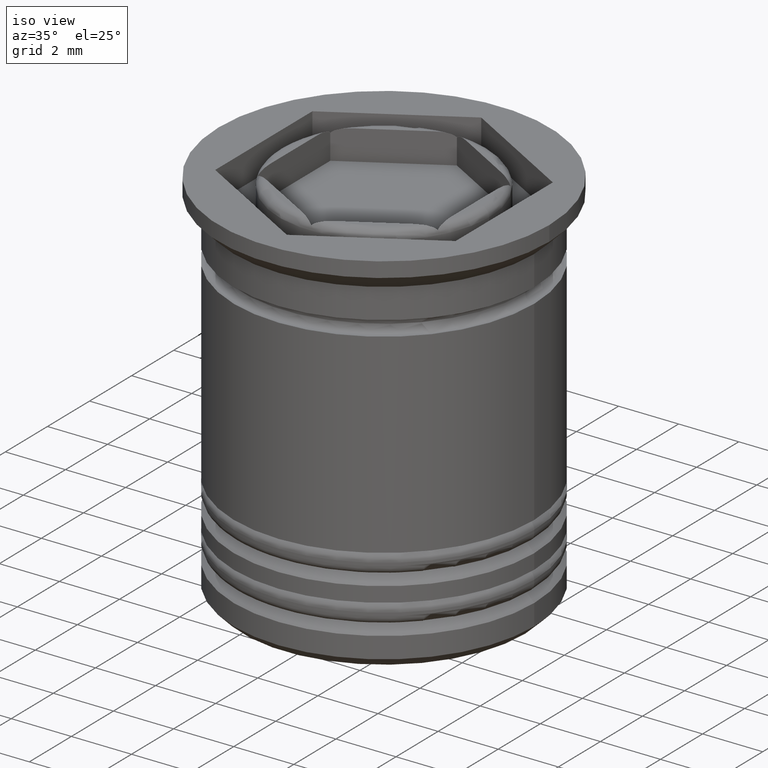
[diagram: clean part render]
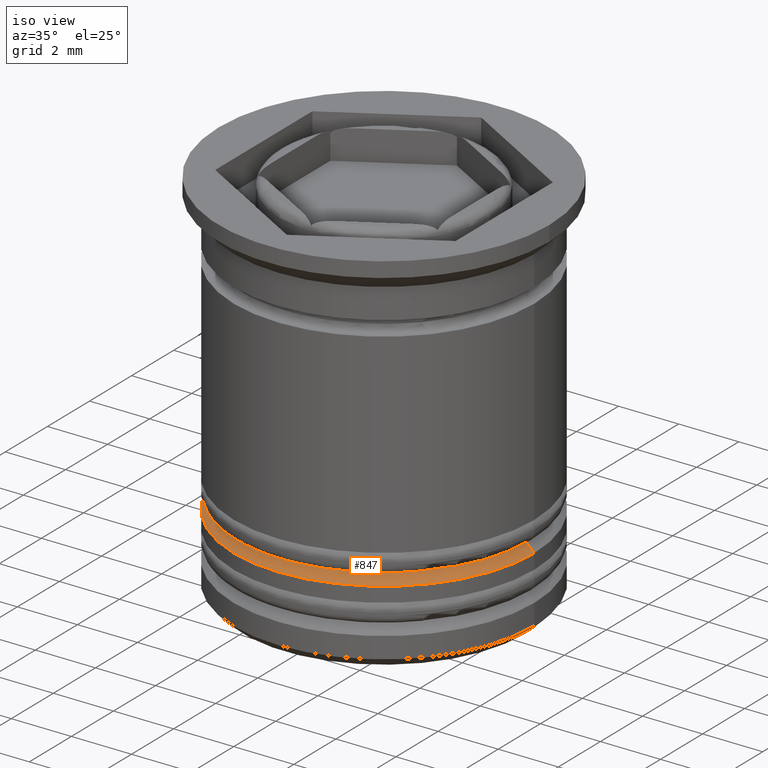
[diagram: same view with one face highlighted and labeled with its STEP entity id]
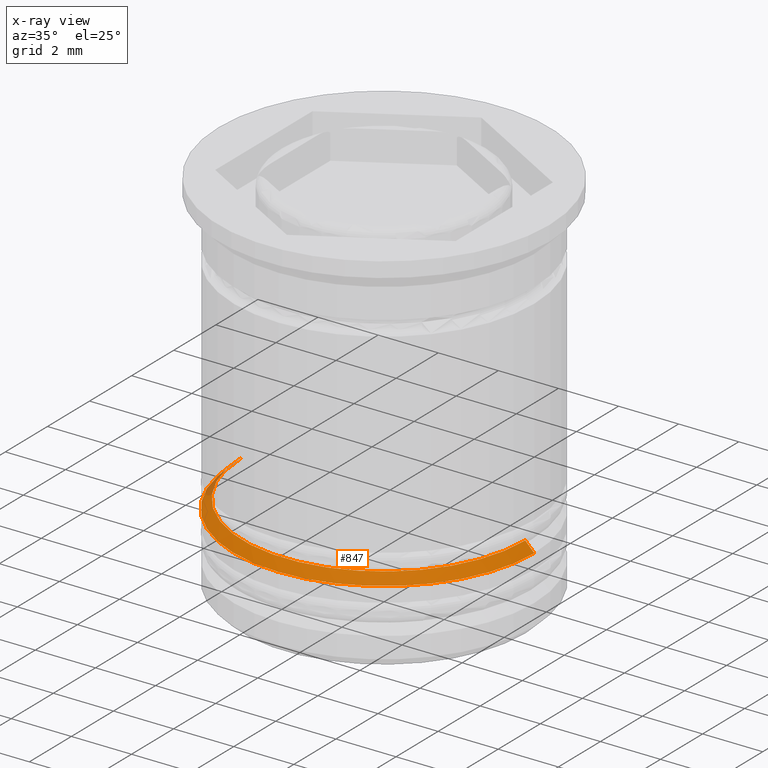
[diagram: x-ray of the same camera — body ghosted, the highlighted face saturated]
A machine part, iso view. The second image highlights one B-rep face of the part: STEP entity #847.
The next image is the same camera in x-ray: the body ghosted, the highlighted face saturated — about 2% of this face is hidden behind the body in this view.
In plain terms, the highlighted conical surface has half-angle 45 deg.
Its self-contained STEP definition (entity closure, byte-faithful):
#23 = EDGE_CURVE ( 'NONE', #1390, #913, #632, .T. ) ;
#35 = EDGE_CURVE ( 'NONE', #1653, #1390, #1521, .T. ) ;
#41 = VERTEX_POINT ( 'NONE', #1628 ) ;
#44 = DIRECTION ( 'NONE',  ( -0.000000000000000000, -0.000000000000000000, 1.000000000000000000 ) ) ;
#47 = CARTESIAN_POINT ( 'NONE',  ( -4.499999999999992006, 0.000000000000000000, -9.500000000000001776 ) ) ;
#69 = EDGE_CURVE ( 'NONE', #41, #1653, #311, .T. ) ;
#230 = AXIS2_PLACEMENT_3D ( 'NONE', #1108, #803, #1280 ) ;
#296 = DIRECTION ( 'NONE',  ( 0.000000000000000000, 0.000000000000000000, -1.000000000000000000 ) ) ;
#311 = CIRCLE ( 'NONE', #1735, 4.700000000000001066 ) ;
#364 = ORIENTED_EDGE ( 'NONE', *, *, #1223, .T. ) ;
#522 = CARTESIAN_POINT ( 'NONE',  ( 0.000000000000000000, 0.000000000000000000, -9.700000000000008171 ) ) ;
#632 = CIRCLE ( 'NONE', #1802, 5.000000000000000888 ) ;
#692 = DIRECTION ( 'NONE',  ( -0.7071067811865512365, 0.000000000000000000, -0.7071067811865439090 ) ) ;
#803 = DIRECTION ( 'NONE',  ( 0.000000000000000000, 0.000000000000000000, -1.000000000000000000 ) ) ;
#847 = ADVANCED_FACE ( 'NONE', ( #1789 ), #1190, .T. ) ;
#896 = VECTOR ( 'NONE', #1837, 1000.000000000000000 ) ;
#913 = VERTEX_POINT ( 'NONE', #1369 ) ;
#1012 = DIRECTION ( 'NONE',  ( -1.000000000000000000, 0.000000000000000000, 0.000000000000000000 ) ) ;
#1067 = EDGE_LOOP ( 'NONE', ( #1219, #1890, #364, #1217 ) ) ;
#1108 = CARTESIAN_POINT ( 'NONE',  ( 0.000000000000000000, 0.000000000000000000, -9.500000000000001776 ) ) ;
#1173 = CARTESIAN_POINT ( 'NONE',  ( 5.000000000000000888, 0.000000000000000000, -10.00000000000000533 ) ) ;
#1190 = CONICAL_SURFACE ( 'NONE', #230, 4.499999999999992006, 0.7853981633974533860 ) ;
#1217 = ORIENTED_EDGE ( 'NONE', *, *, #23, .F. ) ;
#1219 = ORIENTED_EDGE ( 'NONE', *, *, #35, .F. ) ;
#1223 = EDGE_CURVE ( 'NONE', #41, #913, #1651, .T. ) ;
#1280 = DIRECTION ( 'NONE',  ( -1.000000000000000000, 0.000000000000000000, 0.000000000000000000 ) ) ;
#1369 = CARTESIAN_POINT ( 'NONE',  ( -5.000000000000000888, 6.123233995736767268E-16, -10.00000000000000533 ) ) ;
#1390 = VERTEX_POINT ( 'NONE', #1173 ) ;
#1392 = VECTOR ( 'NONE', #692, 1000.000000000000000 ) ;
#1508 = DIRECTION ( 'NONE',  ( -1.000000000000000000, 0.000000000000000000, 0.000000000000000000 ) ) ;
#1521 = LINE ( 'NONE', #1973, #896 ) ;
#1628 = CARTESIAN_POINT ( 'NONE',  ( -4.700000000000001066, 5.755839955992560641E-16, -9.700000000000008171 ) ) ;
#1651 = LINE ( 'NONE', #47, #1392 ) ;
#1653 = VERTEX_POINT ( 'NONE', #1861 ) ;
#1731 = CARTESIAN_POINT ( 'NONE',  ( 0.000000000000000000, 0.000000000000000000, -10.00000000000000533 ) ) ;
#1735 = AXIS2_PLACEMENT_3D ( 'NONE', #522, #44, #1012 ) ;
#1789 = FACE_OUTER_BOUND ( 'NONE', #1067, .T. ) ;
#1802 = AXIS2_PLACEMENT_3D ( 'NONE', #1731, #296, #1508 ) ;
#1837 = DIRECTION ( 'NONE',  ( 0.7071067811865512365, 8.659560562354978464E-17, -0.7071067811865439090 ) ) ;
#1861 = CARTESIAN_POINT ( 'NONE',  ( 4.700000000000001066, 0.000000000000000000, -9.700000000000008171 ) ) ;
#1890 = ORIENTED_EDGE ( 'NONE', *, *, #69, .F. ) ;
#1973 = CARTESIAN_POINT ( 'NONE',  ( 4.499999999999992006, 5.510910596163078709E-16, -9.500000000000001776 ) ) ;